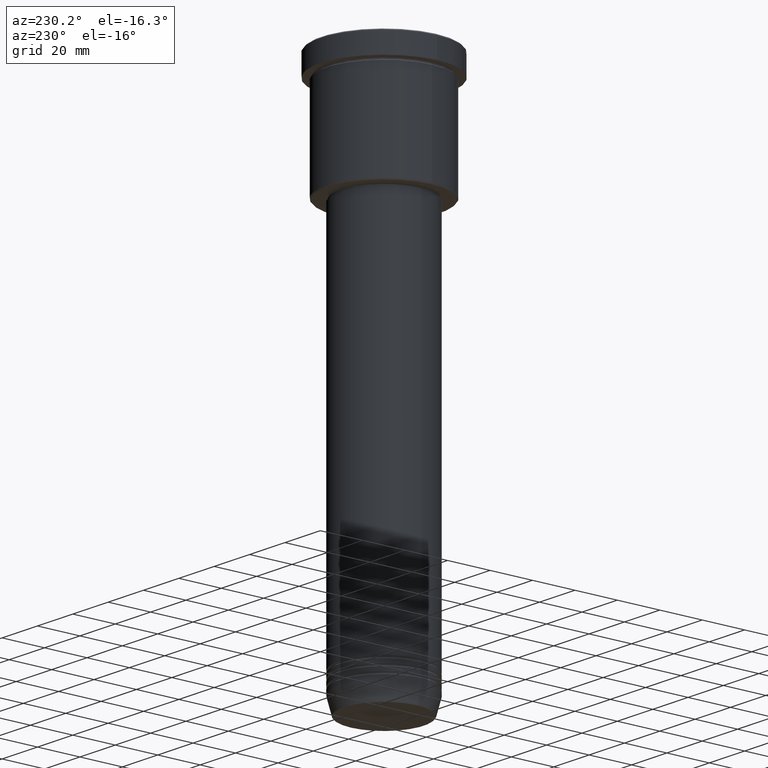
[diagram: clean part render]
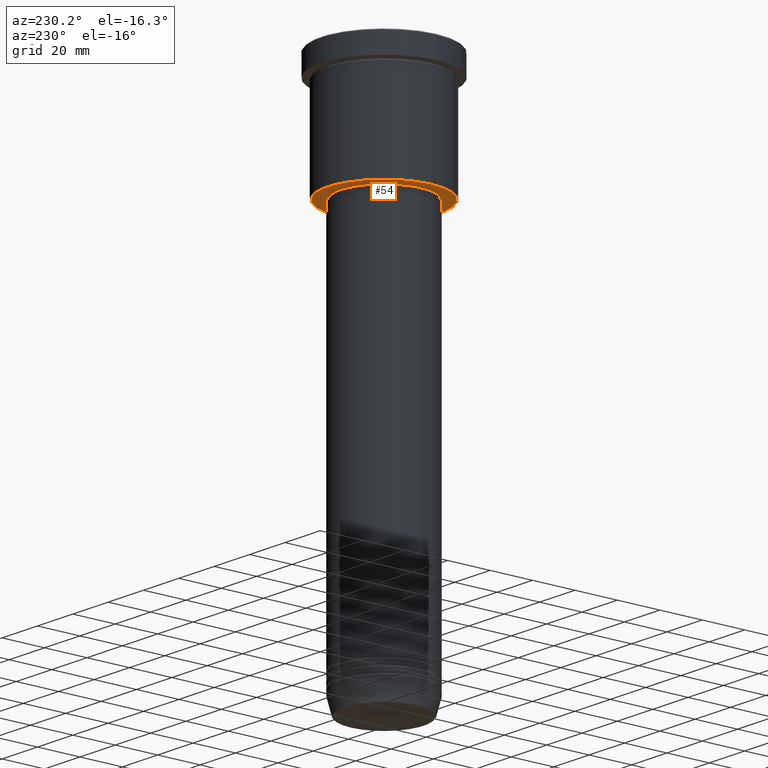
[diagram: same view with one face highlighted and labeled with its STEP entity id]
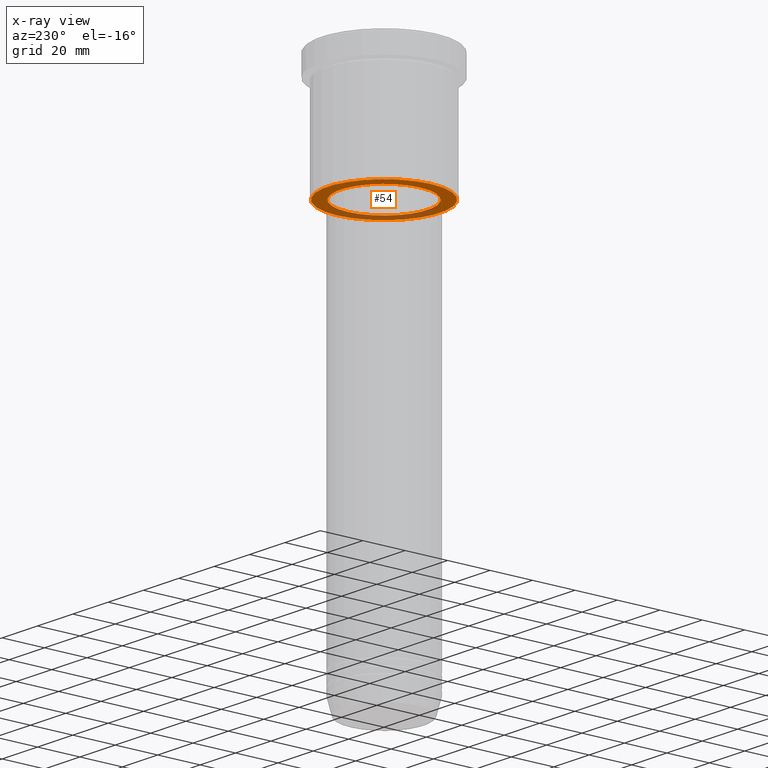
[diagram: x-ray of the same camera — body ghosted, the highlighted face saturated]
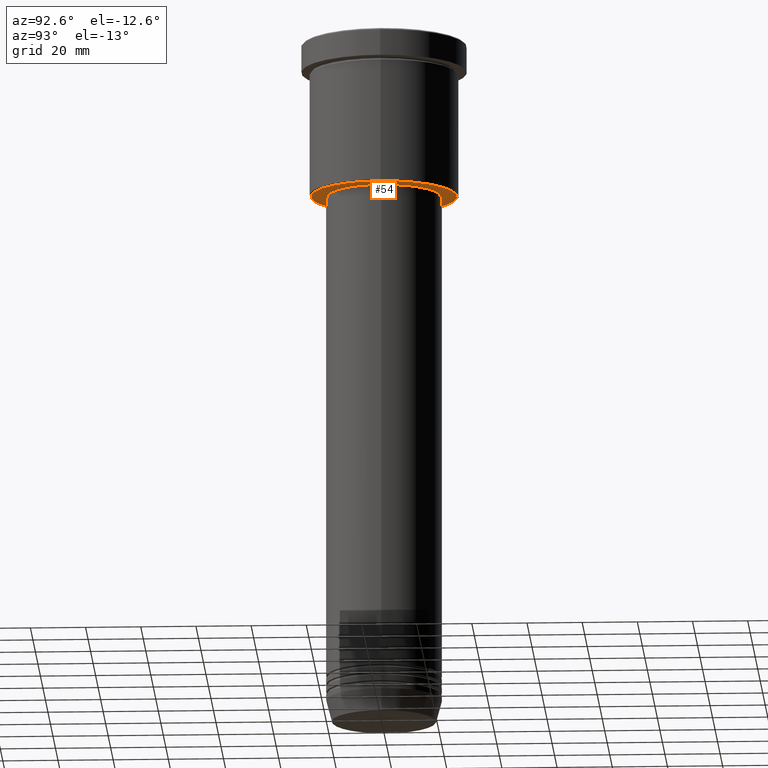
[diagram: same view with one face highlighted and labeled with its STEP entity id]
A machine part, auxiliary view. The second image highlights one B-rep face of the part: STEP entity #54.
The next image is the same camera in x-ray: the body ghosted, the highlighted face saturated — about 28% of this face is hidden behind the body in this view.
A second angle (auxiliary view) of the same face is appended — the face is thin or edge-on in the first view.
In plain terms, the highlighted planar face has unit normal (0, 0, -1).
Its self-contained STEP definition (entity closure, byte-faithful):
#5 = DIRECTION ( 'NONE',  ( 1.000000000000000000, 0.000000000000000000, 0.000000000000000000 ) ) ;
#54 = ADVANCED_FACE ( 'NONE', ( #563, #1103 ), #637, .T. ) ;
#80 = EDGE_CURVE ( 'NONE', #220, #313, #913, .T. ) ;
#83 = CARTESIAN_POINT ( 'NONE',  ( 26.50000000000002487, 0.000000000000000000, -55.99999999999999289 ) ) ;
#87 = EDGE_CURVE ( 'NONE', #313, #220, #641, .T. ) ;
#92 = CARTESIAN_POINT ( 'NONE',  ( -26.50000000000002487, 3.275930187719171524E-15, -55.99999999999999289 ) ) ;
#98 = DIRECTION ( 'NONE',  ( -1.000000000000000000, 0.000000000000000000, -0.000000000000000000 ) ) ;
#120 = AXIS2_PLACEMENT_3D ( 'NONE', #188, #642, #362 ) ;
#123 = CIRCLE ( 'NONE', #120, 26.50000000000002487 ) ;
#162 = ORIENTED_EDGE ( 'NONE', *, *, #756, .T. ) ;
#173 = AXIS2_PLACEMENT_3D ( 'NONE', #791, #1056, #496 ) ;
#175 = CARTESIAN_POINT ( 'NONE',  ( 0.000000000000000000, 27.00000000000000355, -55.99999999999999289 ) ) ;
#188 = CARTESIAN_POINT ( 'NONE',  ( 0.000000000000000000, 0.000000000000000000, -55.99999999999999289 ) ) ;
#220 = VERTEX_POINT ( 'NONE', #274 ) ;
#268 = CARTESIAN_POINT ( 'NONE',  ( 0.000000000000000000, 0.000000000000000000, -55.99999999999999289 ) ) ;
#274 = CARTESIAN_POINT ( 'NONE',  ( -20.50000000000000000, 2.510525938252074481E-15, -55.99999999999999289 ) ) ;
#277 = EDGE_LOOP ( 'NONE', ( #772, #750 ) ) ;
#313 = VERTEX_POINT ( 'NONE', #1040 ) ;
#344 = AXIS2_PLACEMENT_3D ( 'NONE', #542, #907, #365 ) ;
#357 = VERTEX_POINT ( 'NONE', #92 ) ;
#362 = DIRECTION ( 'NONE',  ( -1.000000000000000000, 0.000000000000000000, 0.000000000000000000 ) ) ;
#365 = DIRECTION ( 'NONE',  ( 1.000000000000000000, 0.000000000000000000, 0.000000000000000000 ) ) ;
#369 = EDGE_CURVE ( 'NONE', #357, #1120, #523, .T. ) ;
#432 = ORIENTED_EDGE ( 'NONE', *, *, #369, .T. ) ;
#492 = EDGE_LOOP ( 'NONE', ( #162, #432 ) ) ;
#496 = DIRECTION ( 'NONE',  ( -1.000000000000000000, 0.000000000000000000, 0.000000000000000000 ) ) ;
#523 = CIRCLE ( 'NONE', #173, 26.50000000000002487 ) ;
#542 = CARTESIAN_POINT ( 'NONE',  ( 0.000000000000000000, 0.000000000000000000, -55.99999999999999289 ) ) ;
#558 = DIRECTION ( 'NONE',  ( 0.000000000000000000, 0.000000000000000000, -1.000000000000000000 ) ) ;
#563 = FACE_OUTER_BOUND ( 'NONE', #492, .T. ) ;
#637 = PLANE ( 'NONE',  #877 ) ;
#641 = CIRCLE ( 'NONE', #1100, 20.50000000000000000 ) ;
#642 = DIRECTION ( 'NONE',  ( 0.000000000000000000, 0.000000000000000000, -1.000000000000000000 ) ) ;
#647 = DIRECTION ( 'NONE',  ( -0.000000000000000000, -0.000000000000000000, 1.000000000000000000 ) ) ;
#750 = ORIENTED_EDGE ( 'NONE', *, *, #80, .T. ) ;
#756 = EDGE_CURVE ( 'NONE', #1120, #357, #123, .T. ) ;
#772 = ORIENTED_EDGE ( 'NONE', *, *, #87, .T. ) ;
#791 = CARTESIAN_POINT ( 'NONE',  ( 0.000000000000000000, 0.000000000000000000, -55.99999999999999289 ) ) ;
#877 = AXIS2_PLACEMENT_3D ( 'NONE', #175, #558, #98 ) ;
#907 = DIRECTION ( 'NONE',  ( -0.000000000000000000, -0.000000000000000000, 1.000000000000000000 ) ) ;
#913 = CIRCLE ( 'NONE', #344, 20.50000000000000000 ) ;
#1040 = CARTESIAN_POINT ( 'NONE',  ( 20.50000000000000000, 0.000000000000000000, -55.99999999999999289 ) ) ;
#1056 = DIRECTION ( 'NONE',  ( 0.000000000000000000, 0.000000000000000000, -1.000000000000000000 ) ) ;
#1100 = AXIS2_PLACEMENT_3D ( 'NONE', #268, #647, #5 ) ;
#1103 = FACE_BOUND ( 'NONE', #277, .T. ) ;
#1120 = VERTEX_POINT ( 'NONE', #83 ) ;